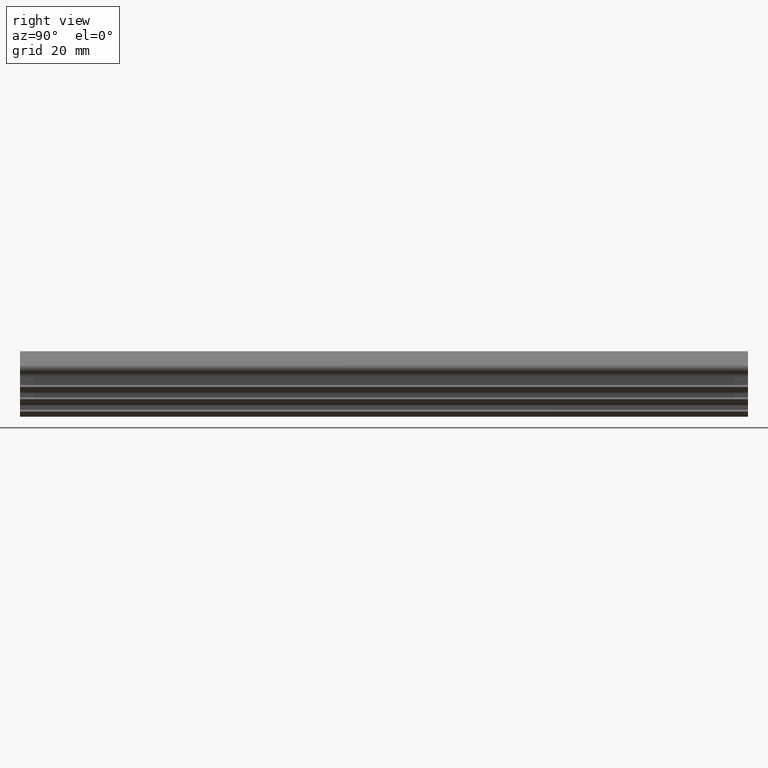
[diagram: clean part render]
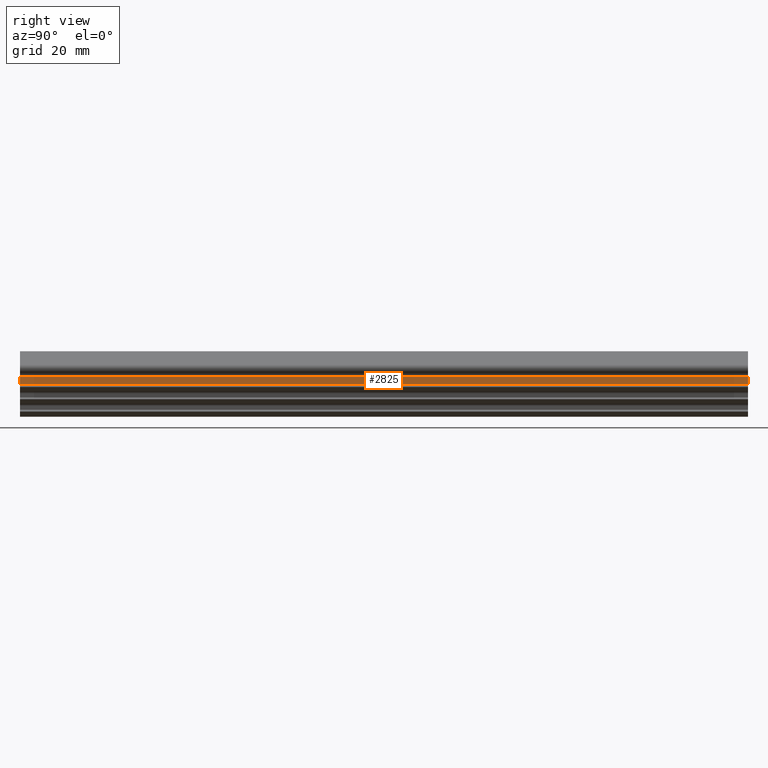
[diagram: same view with one face highlighted and labeled with its STEP entity id]
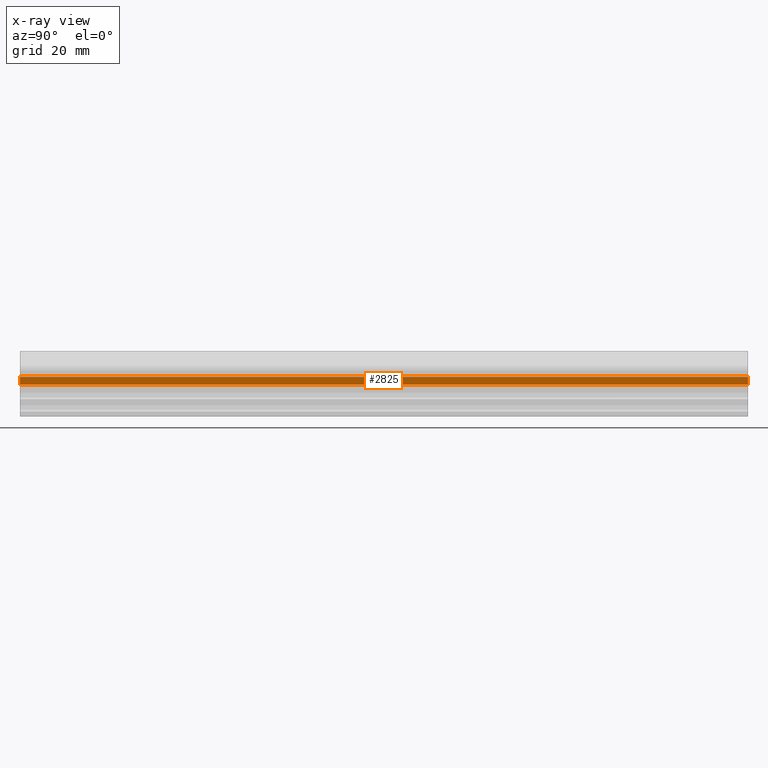
[diagram: x-ray of the same camera — body ghosted, the highlighted face saturated]
A machine part, right view. The second image highlights one B-rep face of the part: STEP entity #2825.
The next image is the same camera in x-ray: the body ghosted, the highlighted face saturated — about 0% of this face is hidden behind the body in this view.
In plain terms, the highlighted face is a freeform B-spline surface patch.
Its self-contained STEP definition (entity closure, byte-faithful):
#51=CARTESIAN_POINT('',(2.650000125868255,0.0,10.972894776054501));
#52=VERTEX_POINT('',#51);
#611=CARTESIAN_POINT('',(2.650000125868255,0.0,8.800000417977559));
#612=VERTEX_POINT('',#611);
#626=CARTESIAN_POINT('',(2.650000125868255,0.0,10.972894776054501));
#627=CARTESIAN_POINT('',(2.650000125868255,0.0,8.800000417977559));
#628=QUASI_UNIFORM_CURVE('',1,(#626,#627),.UNSPECIFIED.,.F.,.U.);
#629=EDGE_CURVE('',#52,#612,#628,.T.);
#821=CARTESIAN_POINT('',(2.650000125868255,200.0,10.972894776054501));
#822=VERTEX_POINT('',#821);
#836=CARTESIAN_POINT('',(2.650000125868255,200.0,8.800000417977559));
#837=VERTEX_POINT('',#836);
#838=CARTESIAN_POINT('',(2.650000125868255,200.0,10.972894776054501));
#839=CARTESIAN_POINT('',(2.650000125868255,200.0,8.800000417977559));
#840=QUASI_UNIFORM_CURVE('',1,(#838,#839),.UNSPECIFIED.,.F.,.U.);
#841=EDGE_CURVE('',#822,#837,#840,.T.);
#2802=CARTESIAN_POINT('',(2.650000125868255,200.0,8.800000417977559));
#2803=CARTESIAN_POINT('',(2.650000125868255,0.0,8.800000417977559));
#2804=QUASI_UNIFORM_CURVE('',1,(#2802,#2803),.UNSPECIFIED.,.F.,.U.);
#2805=EDGE_CURVE('',#837,#612,#2804,.T.);
#2810=CARTESIAN_POINT('',(2.650000125868255,-9.989999612361194,8.691464111995281));
#2811=CARTESIAN_POINT('',(2.650000125868255,-9.989999612361194,11.081430751774560));
#2812=CARTESIAN_POINT('',(2.650000125868255,209.990004976779200,8.691464111995281));
#2813=CARTESIAN_POINT('',(2.650000125868255,209.990004976779200,11.081430751774560));
#2814=B_SPLINE_SURFACE_WITH_KNOTS('',1,1,((#2810,#2812),(#2811,#2813)),.UNSPECIFIED.,.F.,.F.,.U.,(2,2),(2,2),(0.0,2.389966639779278),(0.0,219.980004589140410),.UNSPECIFIED.);
#2815=ORIENTED_EDGE('',*,*,#629,.T.);
#2816=ORIENTED_EDGE('',*,*,#2805,.F.);
#2817=ORIENTED_EDGE('',*,*,#841,.F.);
#2818=CARTESIAN_POINT('',(2.650000125868255,200.0,10.972894776054501));
#2819=CARTESIAN_POINT('',(2.650000125868255,0.0,10.972894776054501));
#2820=QUASI_UNIFORM_CURVE('',1,(#2818,#2819),.UNSPECIFIED.,.F.,.U.);
#2821=EDGE_CURVE('',#822,#52,#2820,.T.);
#2822=ORIENTED_EDGE('',*,*,#2821,.T.);
#2823=EDGE_LOOP('',(#2815,#2816,#2817,#2822));
#2824=FACE_OUTER_BOUND('',#2823,.T.);
#2825=ADVANCED_FACE('',(#2824),#2814,.F.);